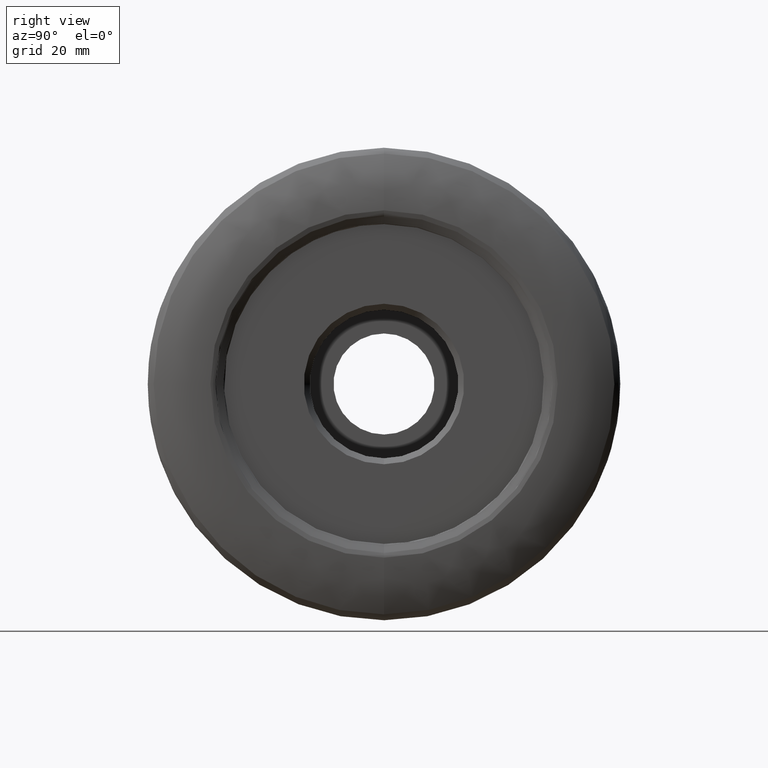
[diagram: clean part render]
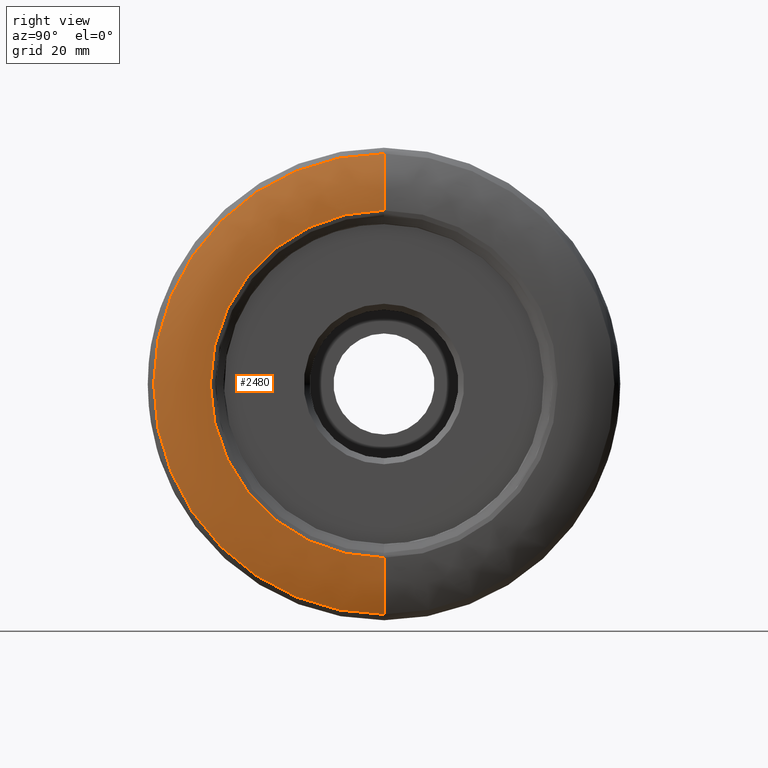
[diagram: same view with one face highlighted and labeled with its STEP entity id]
A machine part, right view. The second image highlights one B-rep face of the part: STEP entity #2480.
In plain terms, the highlighted face is a freeform B-spline surface patch.
Its self-contained STEP definition (entity closure, byte-faithful):
#38 = EDGE_CURVE ( 'NONE', #528, #2381, #387, .T. ) ;
#157 = CARTESIAN_POINT ( 'NONE',  ( -1.134146960454002400, 0.0000000000000000000, 0.0000000000000000000 ) ) ;
#170 = DIRECTION ( 'NONE',  ( -1.000000000000000000, 8.391831888434152500E-018, -0.0000000000000000000 ) ) ;
#190 = DIRECTION ( 'NONE',  ( -5.594554592330477600E-018, -1.000000000000000000, 0.0000000000000000000 ) ) ;
#215 = VERTEX_POINT ( 'NONE', #1797 ) ;
#333 = CARTESIAN_POINT ( 'NONE',  ( 1.039033672783390900, 0.0000000000000000000, 0.0000000000000000000 ) ) ;
#387 =( BOUNDED_CURVE ( )  B_SPLINE_CURVE ( 3, ( #792, #766, #759, #799 ),
 .UNSPECIFIED., .F., .F. ) 
 B_SPLINE_CURVE_WITH_KNOTS ( ( 4, 4 ),
 ( 0.1300457430619577900, 0.8699542569350978700 ),
 .UNSPECIFIED. ) 
 CURVE ( )  GEOMETRIC_REPRESENTATION_ITEM ( )  RATIONAL_B_SPLINE_CURVE ( ( 0.9829313534150904100, 0.9553991276163620300, 0.9553991276162524500, 0.9829313534147619000 ) ) 
 REPRESENTATION_ITEM ( '' )  );
#512 = ORIENTED_EDGE ( 'NONE', *, *, #38, .F. ) ;
#524 = DIRECTION ( 'NONE',  ( -1.000000000000000000, -0.0000000000000000000, -0.0000000000000000000 ) ) ;
#528 = VERTEX_POINT ( 'NONE', #1486 ) ;
#533 = DIRECTION ( 'NONE',  ( 0.0000000000000000000, 0.0000000000000000000, 1.000000000000000000 ) ) ;
#594 = FACE_OUTER_BOUND ( 'NONE', #2747, .T. ) ;
#643 = CIRCLE ( 'NONE', #733, 38.75919537801372200 ) ;
#673 = EDGE_CURVE ( 'NONE', #2454, #2381, #1859, .T. ) ;
#733 = AXIS2_PLACEMENT_3D ( 'NONE', #157, #170, #190 ) ;
#759 = CARTESIAN_POINT ( 'NONE',  ( 1.263502403006137500, 0.0000000000000000000, 32.56677027119451400 ) ) ;
#766 = CARTESIAN_POINT ( 'NONE',  ( 0.5182336386585615400, 0.0000000000000000000, 35.83859545503409500 ) ) ;
#792 = CARTESIAN_POINT ( 'NONE',  ( -1.134146961259572700, 0.0000000000000000000, 38.75919537912700000 ) ) ;
#799 = CARTESIAN_POINT ( 'NONE',  ( 1.039033672938245900, 0.0000000000000000000, 29.21865447941552300 ) ) ;
#1126 = AXIS2_PLACEMENT_3D ( 'NONE', #333, #524, #533 ) ;
#1176 = ORIENTED_EDGE ( 'NONE', *, *, #1644, .F. ) ;
#1327 = CARTESIAN_POINT ( 'NONE',  ( 1.039033672969216700, 0.0000000000000000000, -29.21865447958549200 ) ) ;
#1410 =( BOUNDED_CURVE ( )  B_SPLINE_CURVE ( 3, ( #2226, #2130, #2103, #2098 ),
 .UNSPECIFIED., .F., .F. ) 
 B_SPLINE_CURVE_WITH_KNOTS ( ( 4, 4 ),
 ( 0.1300457430778818000, 0.8699542569586942200 ),
 .UNSPECIFIED. ) 
 CURVE ( )  GEOMETRIC_REPRESENTATION_ITEM ( )  RATIONAL_B_SPLINE_CURVE ( ( 0.9829313534133128400, 0.9553991276154840700, 0.9553991276168450900, 0.9829313534173960100 ) ) 
 REPRESENTATION_ITEM ( '' )  );
#1486 = CARTESIAN_POINT ( 'NONE',  ( -1.134146961259572700, 0.0000000000000000000, 38.75919537912700000 ) ) ;
#1644 = EDGE_CURVE ( 'NONE', #215, #528, #643, .T. ) ;
#1740 = ORIENTED_EDGE ( 'NONE', *, *, #673, .T. ) ;
#1797 = CARTESIAN_POINT ( 'NONE',  ( -1.134146961420686500, 0.0000000000000000000, -38.75919537934964900 ) ) ;
#1859 = CIRCLE ( 'NONE', #1126, 29.21865447856568200 ) ;
#2098 = CARTESIAN_POINT ( 'NONE',  ( -1.134146961420686500, 0.0000000000000000000, -38.75919537934964900 ) ) ;
#2103 = CARTESIAN_POINT ( 'NONE',  ( 0.5182336385871361100, 0.0000000000000000000, -35.83859545526943400 ) ) ;
#2130 = CARTESIAN_POINT ( 'NONE',  ( 1.263502402986435500, 0.0000000000000000000, -32.56677027140543900 ) ) ;
#2226 = CARTESIAN_POINT ( 'NONE',  ( 1.039033672969216700, 0.0000000000000000000, -29.21865447958549200 ) ) ;
#2285 = CARTESIAN_POINT ( 'NONE',  ( 1.039033672938245900, 0.0000000000000000000, 29.21865447941552300 ) ) ;
#2381 = VERTEX_POINT ( 'NONE', #2285 ) ;
#2410 = ORIENTED_EDGE ( 'NONE', *, *, #2614, .F. ) ;
#2454 = VERTEX_POINT ( 'NONE', #1327 ) ;
#2480 = ADVANCED_FACE ( 'NONE', ( #594 ), #2687, .T. ) ;
#2614 = EDGE_CURVE ( 'NONE', #2454, #215, #1410, .T. ) ;
#2642 = CARTESIAN_POINT ( 'NONE',  ( -2.046867430999999500, 0.0000000000000000000, -40.19938090900000600 ) ) ;
#2650 = CARTESIAN_POINT ( 'NONE',  ( -2.046867430999999500, -80.39876181899998600, -40.19938090900000600 ) ) ;
#2659 = CARTESIAN_POINT ( 'NONE',  ( -2.046867430999999500, -80.39876181899998600, 40.19938090900000600 ) ) ;
#2687 =( BOUNDED_SURFACE ( )  B_SPLINE_SURFACE ( 3, 3, ( 
 ( #2809, #2799, #2790, #2782 ),
 ( #2770, #2760, #2745, #2734 ),
 ( #2725, #2717, #2712, #2702 ),
 ( #2691, #2659, #2650, #2642 ) ),
 .UNSPECIFIED., .F., .F., .T. ) 
 B_SPLINE_SURFACE_WITH_KNOTS ( ( 4, 4 ),
 ( 4, 4 ),
 ( 0.0000000000000000000, 1.000000000000000000 ),
 ( 0.0000000000000000000, 1.000000000000000000 ),
 .UNSPECIFIED. ) 
 GEOMETRIC_REPRESENTATION_ITEM ( )  RATIONAL_B_SPLINE_SURFACE ( (
 ( 1.000000000000000000, 0.3333333333333330400, 0.3333333333333330400, 1.000000000000000000),
 ( 0.9497095787546160400, 0.3165698595848721000, 0.3165698595848721000, 0.9497095787546160400),
 ( 0.9497095787546160400, 0.3165698595848721000, 0.3165698595848721000, 0.9497095787546160400),
 ( 1.000000000000000000, 0.3333333333333330400, 0.3333333333333330400, 1.000000000000000000) ) ) 
 REPRESENTATION_ITEM ( '' )  SURFACE ( )  );
#2691 = CARTESIAN_POINT ( 'NONE',  ( -2.046867430999999500, 0.0000000000000000000, 40.19938090900000600 ) ) ;
#2702 = CARTESIAN_POINT ( 'NONE',  ( 0.5849383349999999200, 0.0000000000000000000, -36.47261282900001300 ) ) ;
#2712 = CARTESIAN_POINT ( 'NONE',  ( 0.5849383350000000300, -72.94522565700002300, -36.47261282900001300 ) ) ;
#2717 = CARTESIAN_POINT ( 'NONE',  ( 0.5849383350000000300, -72.94522565700002300, 36.47261282900001300 ) ) ;
#2725 = CARTESIAN_POINT ( 'NONE',  ( 0.5849383349999999200, 0.0000000000000000000, 36.47261282900001300 ) ) ;
#2734 = CARTESIAN_POINT ( 'NONE',  ( 1.598217043000000200, 0.0000000000000000000, -32.02418971800000200 ) ) ;
#2745 = CARTESIAN_POINT ( 'NONE',  ( 1.598217043000000200, -64.04837943599999100, -32.02418971799999500 ) ) ;
#2747 = EDGE_LOOP ( 'NONE', ( #2410, #1740, #512, #1176 ) ) ;
#2760 = CARTESIAN_POINT ( 'NONE',  ( 1.598217043000000200, -64.04837943599999100, 32.02418971799999500 ) ) ;
#2770 = CARTESIAN_POINT ( 'NONE',  ( 1.598217043000000200, 0.0000000000000000000, 32.02418971800000200 ) ) ;
#2782 = CARTESIAN_POINT ( 'NONE',  ( 0.8400940540000002600, 0.0000000000000000000, -27.52525079300000500 ) ) ;
#2790 = CARTESIAN_POINT ( 'NONE',  ( 0.8400940540000002600, -55.05050158599999600, -27.52525079300000500 ) ) ;
#2799 = CARTESIAN_POINT ( 'NONE',  ( 0.8400940540000002600, -55.05050158599999600, 27.52525079300000500 ) ) ;
#2809 = CARTESIAN_POINT ( 'NONE',  ( 0.8400940540000002600, 0.0000000000000000000, 27.52525079300000500 ) ) ;